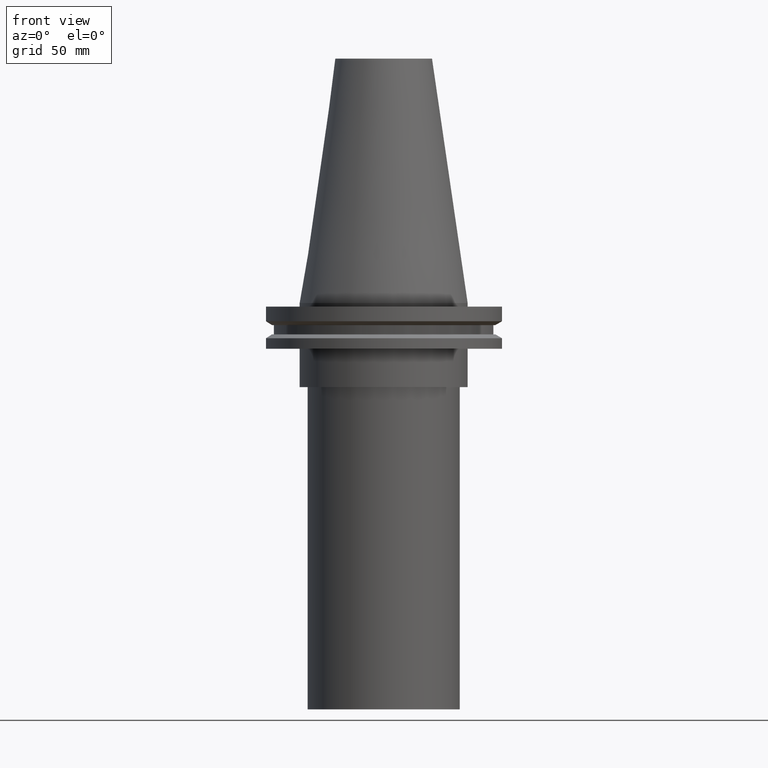
[diagram: clean part render]
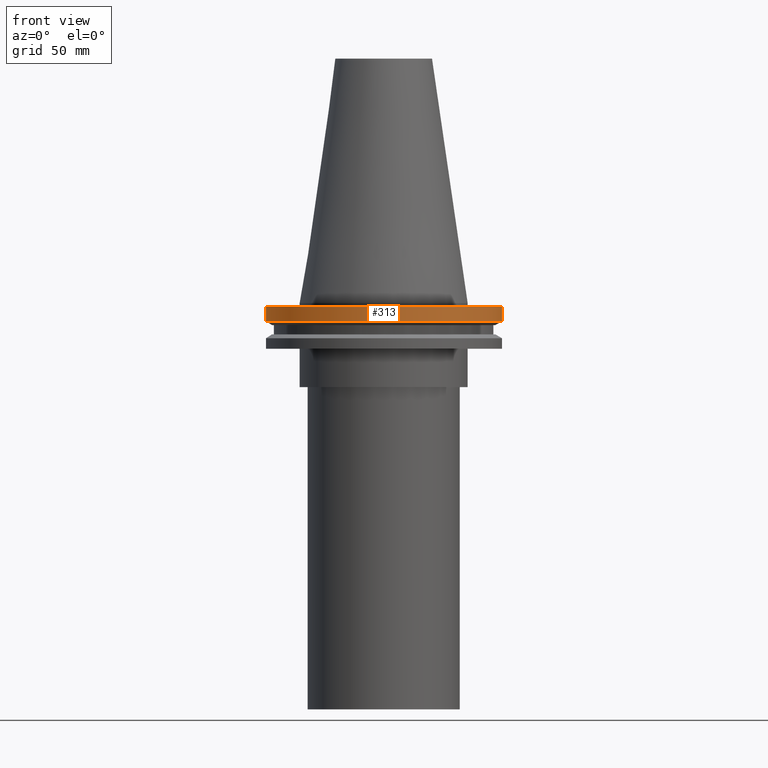
[diagram: same view with one face highlighted and labeled with its STEP entity id]
A machine part, front view. The second image highlights one B-rep face of the part: STEP entity #313.
In plain terms, the highlighted cylindrical surface (bore or boss wall) has radius 49.215 mm, axis along (-0, -0, 1).
Its self-contained STEP definition (entity closure, byte-faithful):
#8 = VERTEX_POINT ( 'NONE', #126 ) ;
#25 = FACE_OUTER_BOUND ( 'NONE', #196, .T. ) ;
#33 = FACE_OUTER_BOUND ( 'NONE', #82, .T. ) ;
#45 = DIRECTION ( 'NONE',  ( -0.000000000000000000, -0.000000000000000000, 1.000000000000000000 ) ) ;
#76 = AXIS2_PLACEMENT_3D ( 'NONE', #183, #336, #390 ) ;
#82 = EDGE_LOOP ( 'NONE', ( #164 ) ) ;
#84 = CYLINDRICAL_SURFACE ( 'NONE', #264, 49.21499999999999631 ) ;
#98 = CARTESIAN_POINT ( 'NONE',  ( 49.21499999999999631, 0.000000000000000000, -1.499999999999987566 ) ) ;
#126 = CARTESIAN_POINT ( 'NONE',  ( 49.21500000000000341, 0.000000000000000000, -7.602389855251287187 ) ) ;
#151 = DIRECTION ( 'NONE',  ( 1.000000000000000000, 0.000000000000000000, 0.000000000000000000 ) ) ;
#164 = ORIENTED_EDGE ( 'NONE', *, *, #258, .F. ) ;
#169 = VERTEX_POINT ( 'NONE', #98 ) ;
#170 = EDGE_CURVE ( 'NONE', #8, #8, #284, .T. ) ;
#183 = CARTESIAN_POINT ( 'NONE',  ( 0.000000000000000000, 0.000000000000000000, -1.499999999999987566 ) ) ;
#185 = CARTESIAN_POINT ( 'NONE',  ( 0.000000000000000000, 0.000000000000000000, 101.5999999999999943 ) ) ;
#196 = EDGE_LOOP ( 'NONE', ( #235 ) ) ;
#235 = ORIENTED_EDGE ( 'NONE', *, *, #170, .T. ) ;
#256 = CIRCLE ( 'NONE', #76, 49.21499999999999631 ) ;
#258 = EDGE_CURVE ( 'NONE', #169, #169, #256, .T. ) ;
#264 = AXIS2_PLACEMENT_3D ( 'NONE', #185, #337, #151 ) ;
#284 = CIRCLE ( 'NONE', #296, 49.21500000000000341 ) ;
#296 = AXIS2_PLACEMENT_3D ( 'NONE', #354, #45, #328 ) ;
#313 = ADVANCED_FACE ( 'NONE', ( #33, #25 ), #84, .T. ) ;
#328 = DIRECTION ( 'NONE',  ( 1.000000000000000000, 0.000000000000000000, 0.000000000000000000 ) ) ;
#336 = DIRECTION ( 'NONE',  ( -0.000000000000000000, -0.000000000000000000, 1.000000000000000000 ) ) ;
#337 = DIRECTION ( 'NONE',  ( -0.000000000000000000, -0.000000000000000000, 1.000000000000000000 ) ) ;
#354 = CARTESIAN_POINT ( 'NONE',  ( 0.000000000000000000, 0.000000000000000000, -7.602389855251287187 ) ) ;
#390 = DIRECTION ( 'NONE',  ( 1.000000000000000000, 0.000000000000000000, 0.000000000000000000 ) ) ;